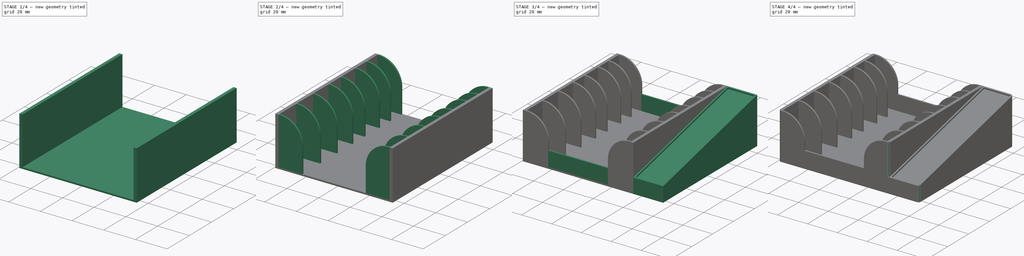
[diagram: build sequence overview — one tinted view per stage of 4, left to right]
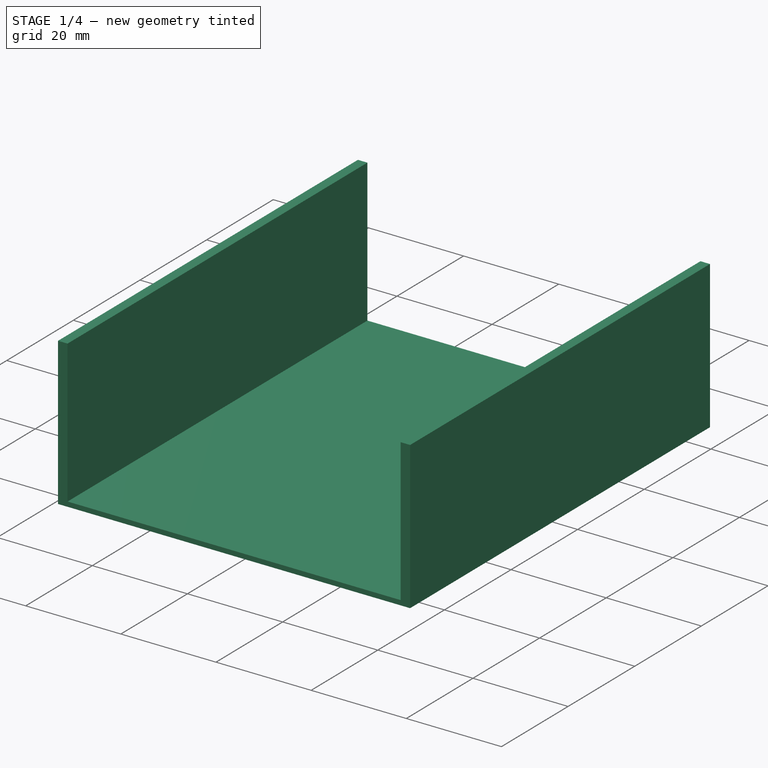
[diagram: stage 1 of 4 — iso view after this stage's code; geometry added in this stage tinted green]
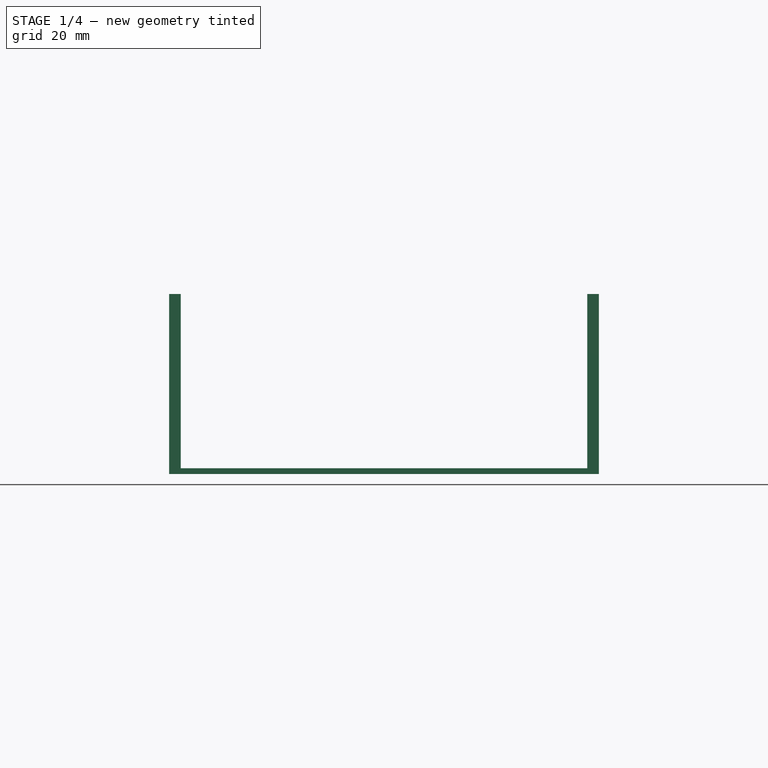
[diagram: stage 1 of 4 — front view after this stage's code; geometry added in this stage tinted green]
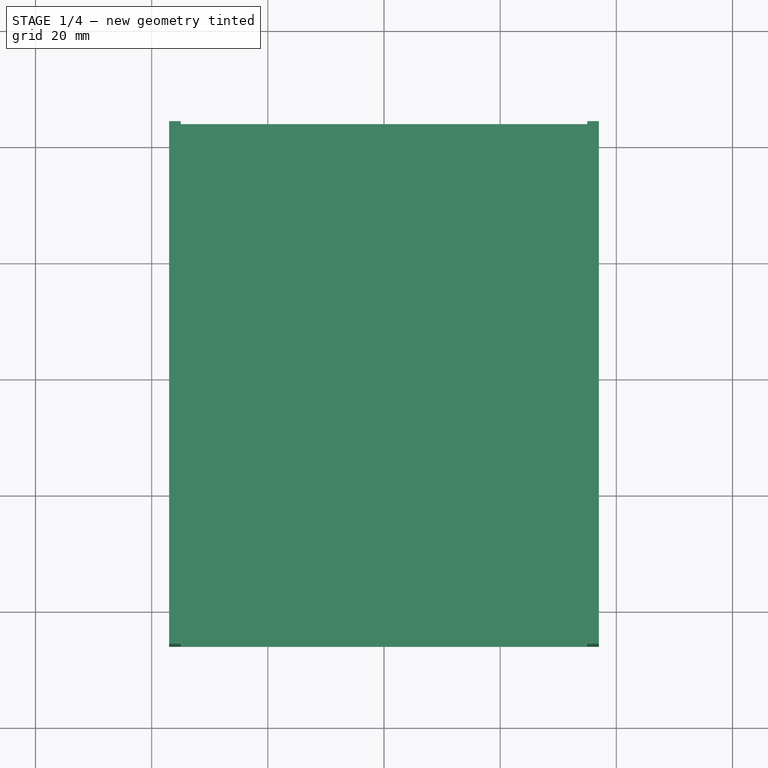
[diagram: stage 1 of 4 — top view after this stage's code; geometry added in this stage tinted green]
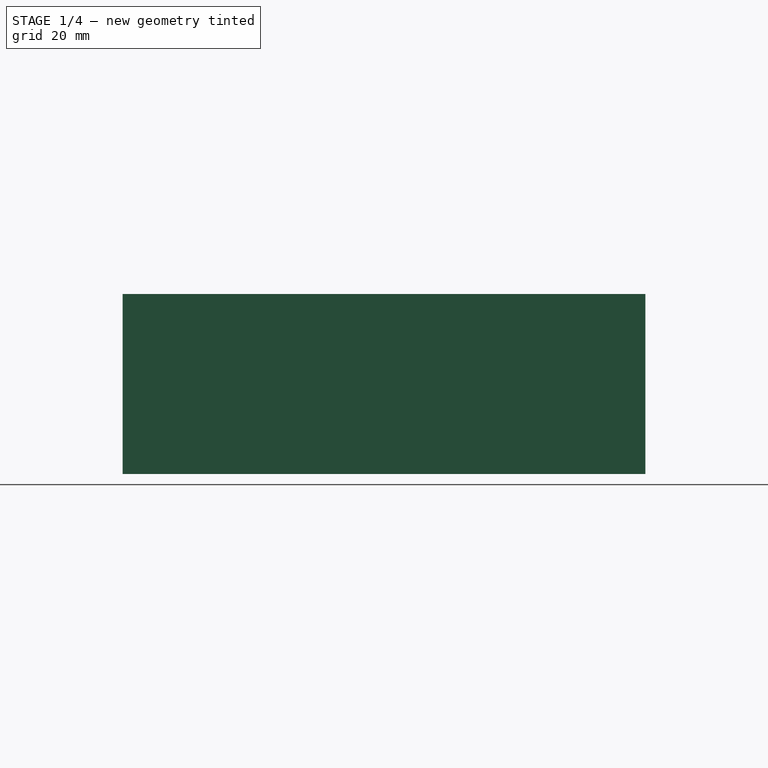
[diagram: stage 1 of 4 — right view after this stage's code; geometry added in this stage tinted green]
FCSTD DOCUMENT  (FreeCAD 0.19R24267 +148 (Git))
Label: base_card_holder_V4
License: All rights reserved
LicenseURL: http://en.wikipedia.org/wiki/All_rights_reserved
objects: Sketcher::SketchObject×8, PartDesign::Pad×5, PartDesign::Fillet×2, PartDesign::Pocket×2, PartDesign::Body×1, App::Part×1
note: 27 computed .brp shape members not serialized (recipe doc carries the construction recipe); baked Part::Feature solids carry a one-line shape summary decoded from their .brp

FEATURE [Sketcher::SketchObject] Sketch
  FullyConstrained = true
  MapMode = 5
  Support = -> [XY_Plane001]
  sketch-geometry (19):
    g0: LineSegment StartX=37 StartY=43 StartZ=0 EndX=37 EndY=34 EndZ=0
    g1: LineSegment StartX=37 StartY=34 StartZ=0 EndX=37 EndY=33 EndZ=0
    g2: LineSegment StartX=37 StartY=33 StartZ=0 EndX=37 EndY=24 EndZ=0
    g3: LineSegment StartX=37 StartY=24 StartZ=0 EndX=37 EndY=23 EndZ=0
    g4: LineSegment StartX=37 StartY=23 StartZ=0 EndX=37 EndY=11 EndZ=0
    g5: LineSegment StartX=37 StartY=11 StartZ=0 EndX=37 EndY=10 EndZ=0
    g6: LineSegment StartX=37 StartY=10 StartZ=0 EndX=37 EndY=0 EndZ=0
    g7: LineSegment StartX=37 StartY=0 StartZ=0 EndX=37 EndY=-1 EndZ=0
    g8: LineSegment StartX=37 StartY=-1 StartZ=0 EndX=37 EndY=-14 EndZ=0
    g9: LineSegment StartX=37 StartY=-14 StartZ=0 EndX=37 EndY=-15 EndZ=0
    g10: LineSegment StartX=37 StartY=-15 StartZ=0 EndX=37 EndY=-29 EndZ=0
    g11: LineSegment StartX=37 StartY=-29 StartZ=0 EndX=37 EndY=-30 EndZ=0
    g12: LineSegment StartX=37 StartY=-30 StartZ=0 EndX=37 EndY=-45 EndZ=0
    g13: LineSegment StartX=37 StartY=43 StartZ=0 EndX=37 EndY=44 EndZ=0
    g14: LineSegment StartX=37 StartY=44 StartZ=0 EndX=0 EndY=44 EndZ=0
    g15: LineSegment StartX=0 StartY=44 StartZ=0 EndX=-37 EndY=44 EndZ=0
    g16: LineSegment StartX=-37 StartY=44 StartZ=0 EndX=-37 EndY=-46 EndZ=0
    g17: LineSegment StartX=-37 StartY=-46 StartZ=0 EndX=37 EndY=-46 EndZ=0
    g18: LineSegment StartX=37 StartY=-46 StartZ=0 EndX=37 EndY=-45 EndZ=0
  constraints (57):
    c: Vertical(g0)
    c: Coincident(g0,g1)
    c: Coincident(g1,g2)
    c: Vertical(g2)
    c: Coincident(g2,g3)
    c: Coincident(g3,g4)
    c: Vertical(g4)
    c: Coincident(g4,g5)
    c: Vertical(g5)
    c: Vertical(g1)
    c: Vertical(g3)
    c: DistanceY(g0,g0) = 9
    c: Equal(g2,g0)
    c: DistanceY(g4,g3) = 12
    c: DistanceY(g1,g0) = 1
    c: Equal(g3,g1)
    c: Equal(g3,g5)
    c: Coincident(g6,g5)
    c: PointOnObject(g6,g-1)
    c: Vertical(g6)
    c: DistanceY(g6,g5) = 10
    c: Coincident(g7,g6)
    c: Vertical(g7)
    c: Equal(g7,g5)
    c: Coincident(g8,g7)
    c: Vertical(g8)
    c: DistanceY(g8,g7) = 13
    c: Coincident(g8,g9)
    c: Coincident(g9,g10)
    c: Vertical(g10)
    c: Vertical(g9)
    c: Equal(g9,g7)
    c: DistanceY(g10,g9) = 14
    c: Coincident(g10,g11)
    c: Vertical(g11)
    c: Coincident(g11,g12)
    c: Vertical(g12)
    c: Equal(g11,g9)
    c: DistanceY(g12,g11) = 15
    c: Coincident(g0,g13)
    c: Vertical(g13)
    c: Coincident(g13,g14)
    c: Horizontal(g14)
    c: Coincident(g14,g15)
    c: Horizontal(g15)
    c: Coincident(g15,g16)
    c: Vertical(g16)
    c: Coincident(g16,g17)
    c: Horizontal(g17)
    c: Coincident(g17,g18)
    c: Coincident(g18,g12)
    c: Vertical(g18)
    c: Equal(g13,g1)
    c: Equal(g1,g18)
    c: Vertical(g14,g-1)
    c: Equal(g15,g14)
    c: DistanceX(g15,g13) = 74
FEATURE [PartDesign::Pad] Pad
  Direction = (1,1,1)
  Length = 1
  Length2 = 100
  Profile = -> Sketch
  Type = 0
FEATURE [Sketcher::SketchObject] Sketch001
  ExternalGeometry = -> [Pad]
  FullyConstrained = true
  MapMode = 5
  Placement = pos=(0,0,1) rot=(0,0,1;0rad)
  Support = -> [Pad]
  sketch-geometry (9):
    g0: LineSegment StartX=35 StartY=44 StartZ=0 EndX=37 EndY=44 EndZ=0
    g1: LineSegment StartX=37 StartY=44 StartZ=0 EndX=37 EndY=0 EndZ=0
    g2: LineSegment StartX=35 StartY=-46 StartZ=0 EndX=35 EndY=44 EndZ=0
    g3: LineSegment StartX=-37 StartY=44 StartZ=0 EndX=-35 EndY=44 EndZ=0
    g4: LineSegment StartX=-35 StartY=44 StartZ=0 EndX=-35 EndY=-46 EndZ=0
    g5: LineSegment StartX=-35 StartY=-46 StartZ=0 EndX=-37 EndY=-46 EndZ=0
    g6: LineSegment StartX=-37 StartY=-46 StartZ=0 EndX=-37 EndY=44 EndZ=0
    g7: LineSegment StartX=37 StartY=0 StartZ=0 EndX=37 EndY=-46 EndZ=0
    g8: LineSegment StartX=37 StartY=-46 StartZ=0 EndX=35 EndY=-46 EndZ=0
  constraints (24):
    c: Coincident(g0,g1)
    c: Coincident(g2,g0)
    c: Horizontal(g0)
    c: Vertical(g1)
    c: Vertical(g2)
    c: PointOnObject(g1,g-1)
    c: Coincident(g3,g4)
    c: Coincident(g4,g5)
    c: Coincident(g5,g6)
    c: Coincident(g6,g3)
    c: Horizontal(g3)
    c: Horizontal(g5)
    c: Vertical(g4)
    c: Vertical(g6)
    c: Coincident(g3,g-5)
    c: Coincident(g0,g-3)
    c: DistanceX(g0,g0) = 2
    c: Equal(g0,g3)
    c: Horizontal(g2,g4)
    c: Horizontal(g4,g-8)
    c: Coincident(g1,g7)
    c: Coincident(g7,g-8)
    c: Coincident(g7,g8)
    c: Coincident(g8,g2)
FEATURE [PartDesign::Pad] Pad001
  BaseFeature = -> Pad
  Direction = (1,1,1)
  Length = 30
  Length2 = 100
  Profile = -> Sketch001
  Type = 0
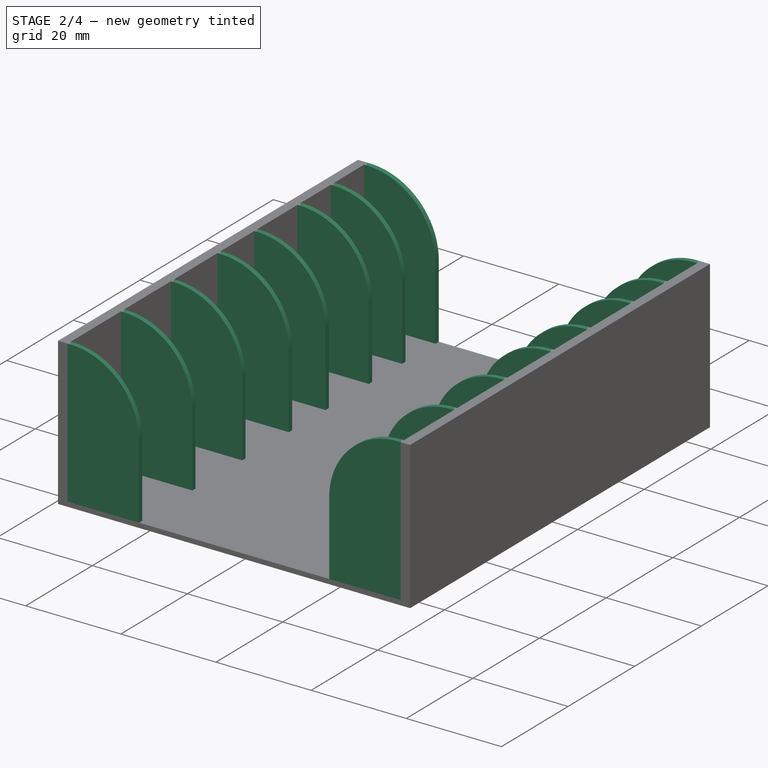
[diagram: stage 2 of 4 — iso view after this stage's code; geometry added in this stage tinted green]
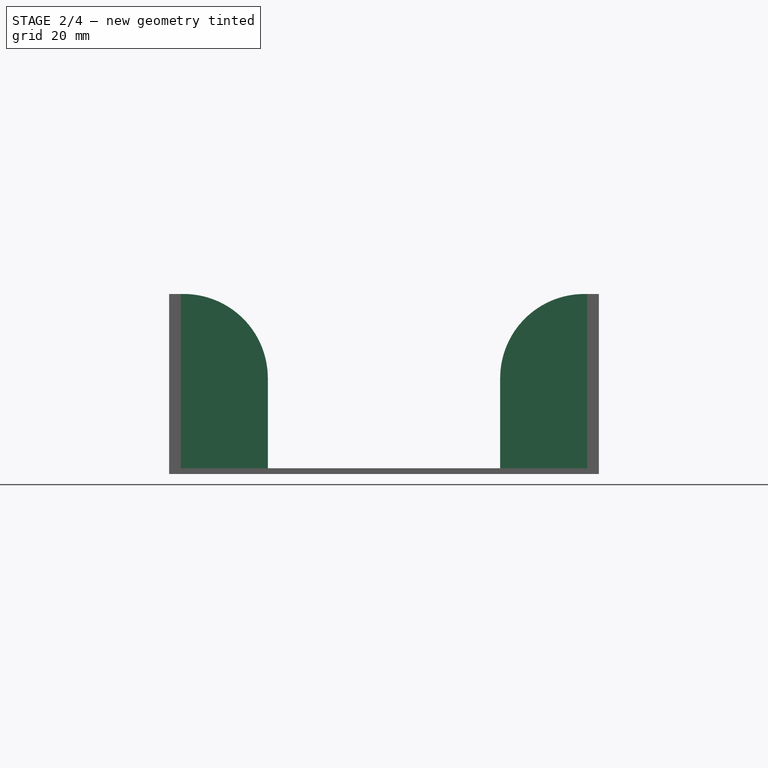
[diagram: stage 2 of 4 — front view after this stage's code; geometry added in this stage tinted green]
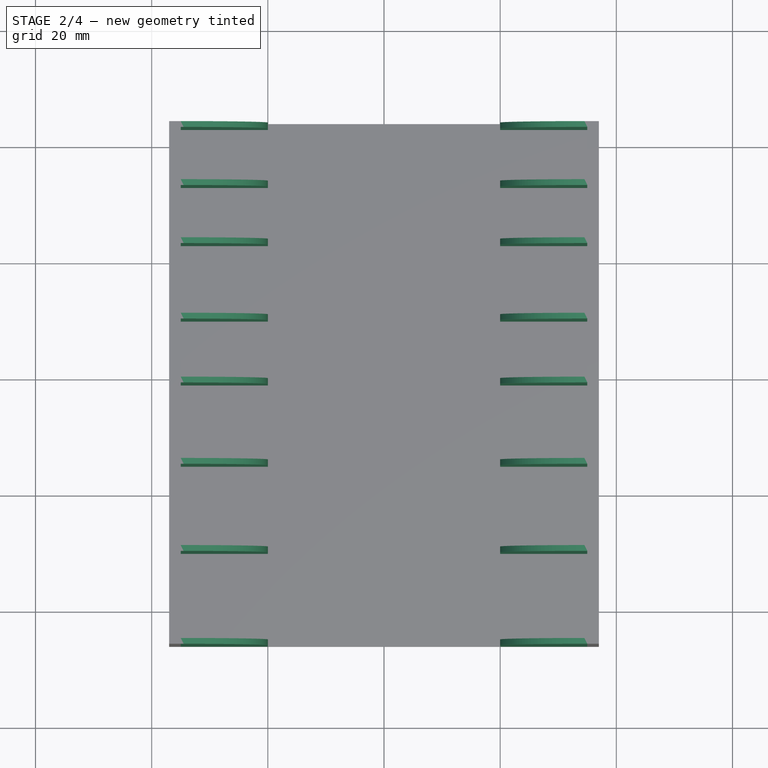
[diagram: stage 2 of 4 — top view after this stage's code; geometry added in this stage tinted green]
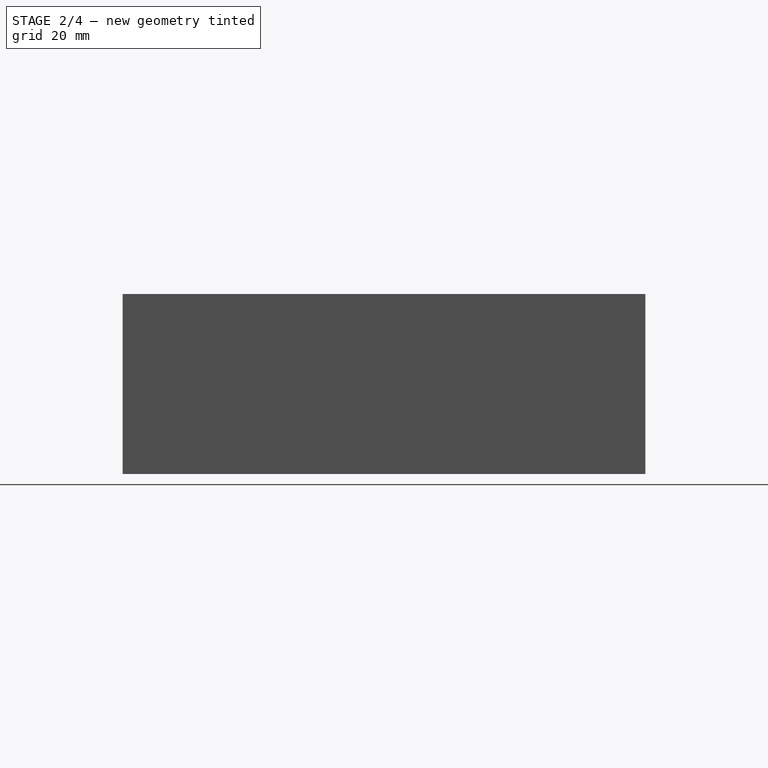
[diagram: stage 2 of 4 — right view after this stage's code; geometry added in this stage tinted green]
FEATURE [Sketcher::SketchObject] Sketch002
  ExternalGeometry = -> [Pad001]
  FullyConstrained = true
  MapMode = 5
  Placement = pos=(0,0,1) rot=(0,0,1;0rad)
  Support = -> [Pad001]
  sketch-geometry (64):
    g0: LineSegment StartX=20 StartY=44 StartZ=0 EndX=37 EndY=44 EndZ=0
    g1: LineSegment StartX=37 StartY=44 StartZ=0 EndX=37 EndY=43 EndZ=0
    g2: LineSegment StartX=37 StartY=43 StartZ=0 EndX=20 EndY=43 EndZ=0
    g3: LineSegment StartX=20 StartY=43 StartZ=0 EndX=20 EndY=44 EndZ=0
    g4: LineSegment StartX=20 StartY=34 StartZ=0 EndX=37 EndY=34 EndZ=0
    g5: LineSegment StartX=37 StartY=34 StartZ=0 EndX=37 EndY=33 EndZ=0
    g6: LineSegment StartX=37 StartY=33 StartZ=0 EndX=20 EndY=33 EndZ=0
    g7: LineSegment StartX=20 StartY=33 StartZ=0 EndX=20 EndY=34 EndZ=0
    g8: LineSegment StartX=20 StartY=23 StartZ=0 EndX=37 EndY=23 EndZ=0
    g9: LineSegment StartX=37 StartY=23 StartZ=0 EndX=37 EndY=24 EndZ=0
    g10: LineSegment StartX=37 StartY=24 StartZ=0 EndX=20 EndY=24 EndZ=0
    g11: LineSegment StartX=20 StartY=24 StartZ=0 EndX=20 EndY=23 EndZ=0
    g12: LineSegment StartX=20 StartY=11 StartZ=0 EndX=37 EndY=11 EndZ=0
    g13: LineSegment StartX=37 StartY=11 StartZ=0 EndX=37 EndY=10 EndZ=0
    g14: LineSegment StartX=37 StartY=10 StartZ=0 EndX=20 EndY=10 EndZ=0
    g15: LineSegment StartX=20 StartY=10 StartZ=0 EndX=20 EndY=11 EndZ=0
    g16: LineSegment StartX=20 StartY=0 StartZ=0 EndX=37 EndY=0 EndZ=0
    g17: LineSegment StartX=37 StartY=0 StartZ=0 EndX=37 EndY=-1 EndZ=0
    g18: LineSegment StartX=37 StartY=-1 StartZ=0 EndX=20 EndY=-1 EndZ=0
    g19: LineSegment StartX=20 StartY=-1 StartZ=0 EndX=20 EndY=0 EndZ=0
    g20: LineSegment StartX=20 StartY=-14 StartZ=0 EndX=37 EndY=-14 EndZ=0
    g21: LineSegment StartX=37 StartY=-14 StartZ=0 EndX=37 EndY=-15 EndZ=0
    g22: LineSegment StartX=37 StartY=-15 StartZ=0 EndX=20 EndY=-15 EndZ=0
    g23: LineSegment StartX=20 StartY=-15 StartZ=0 EndX=20 EndY=-14 EndZ=0
    g24: LineSegment StartX=20 StartY=-29 StartZ=0 EndX=37 EndY=-29 EndZ=0
    g25: LineSegment StartX=37 StartY=-29 StartZ=0 EndX=37 EndY=-30 EndZ=0
    g26: LineSegment StartX=37 StartY=-30 StartZ=0 EndX=20 EndY=-30 EndZ=0
    g27: LineSegment StartX=20 StartY=-30 StartZ=0 EndX=20 EndY=-29 EndZ=0
    g28: LineSegment StartX=37 StartY=-46 StartZ=0 EndX=20 EndY=-46 EndZ=0
    g29: LineSegment StartX=-35 StartY=-45 StartZ=0 EndX=-20 EndY=-45 EndZ=0
    g30: LineSegment StartX=-20 StartY=-45 StartZ=0 EndX=-20 EndY=-46 EndZ=0
    g31: LineSegment StartX=-20 StartY=-46 StartZ=0 EndX=-35 EndY=-46 EndZ=0
    g32: LineSegment StartX=-35 StartY=-46 StartZ=0 EndX=-35 EndY=-45 EndZ=0
    g33: LineSegment StartX=-35 StartY=-29 StartZ=0 EndX=-20 EndY=-29 EndZ=0
    g34: LineSegment StartX=-20 StartY=-29 StartZ=0 EndX=-20 EndY=-30 EndZ=0
    g35: LineSegment StartX=-20 StartY=-30 StartZ=0 EndX=-35 EndY=-30 EndZ=0
    g36: LineSegment StartX=-35 StartY=-30 StartZ=0 EndX=-35 EndY=-29 EndZ=0
    g37: LineSegment StartX=-35 StartY=-14 StartZ=0 EndX=-20 EndY=-14 EndZ=0
    g38: LineSegment StartX=-20 StartY=-14 StartZ=0 EndX=-20 EndY=-15 EndZ=0
    g39: LineSegment StartX=-20 StartY=-15 StartZ=0 EndX=-35 EndY=-15 EndZ=0
    g40: LineSegment StartX=-35 StartY=-15 StartZ=0 EndX=-35 EndY=-14 EndZ=0
    g41: LineSegment StartX=-35 StartY=0 StartZ=0 EndX=-20 EndY=0 EndZ=0
    g42: LineSegment StartX=-20 StartY=0 StartZ=0 EndX=-20 EndY=-1 EndZ=0
    g43: LineSegment StartX=-20 StartY=-1 StartZ=0 EndX=-35 EndY=-1 EndZ=0
    g44: LineSegment StartX=-35 StartY=-1 StartZ=0 EndX=-35 EndY=0 EndZ=0
    g45: LineSegment StartX=-35 StartY=11 StartZ=0 EndX=-20 EndY=11 EndZ=0
    g46: LineSegment StartX=-20 StartY=11 StartZ=0 EndX=-20 EndY=10 EndZ=0
    g47: LineSegment StartX=-20 StartY=10 StartZ=0 EndX=-35 EndY=10 EndZ=0
    g48: LineSegment StartX=-35 StartY=10 StartZ=0 EndX=-35 EndY=11 EndZ=0
    g49: LineSegment StartX=-35 StartY=24 StartZ=0 EndX=-20 EndY=24 EndZ=0
    g50: LineSegment StartX=-20 StartY=24 StartZ=0 EndX=-20 EndY=23 EndZ=0
    g51: LineSegment StartX=-20 StartY=23 StartZ=0 EndX=-35 EndY=23 EndZ=0
    g52: LineSegment StartX=-35 StartY=23 StartZ=0 EndX=-35 EndY=24 EndZ=0
    g53: LineSegment StartX=-35 StartY=34 StartZ=0 EndX=-20 EndY=34 EndZ=0
    g54: LineSegment StartX=-20 StartY=34 StartZ=0 EndX=-20 EndY=33 EndZ=0
    g55: LineSegment StartX=-20 StartY=33 StartZ=0 EndX=-35 EndY=33 EndZ=0
    g56: LineSegment StartX=-35 StartY=33 StartZ=0 EndX=-35 EndY=34 EndZ=0
    g57: LineSegment StartX=-35 StartY=44 StartZ=0 EndX=-20 EndY=44 EndZ=0
    g58: LineSegment StartX=-20 StartY=44 StartZ=0 EndX=-20 EndY=43 EndZ=0
    g59: LineSegment StartX=-20 StartY=43 StartZ=0 EndX=-35 EndY=43 EndZ=0
    g60: LineSegment StartX=-35 StartY=43 StartZ=0 EndX=-35 EndY=44 EndZ=0
    g61: LineSegment StartX=20 StartY=-46 StartZ=0 EndX=20 EndY=-45 EndZ=0
    g62: LineSegment StartX=20 StartY=-45 StartZ=0 EndX=37 EndY=-45 EndZ=0
    g63: LineSegment StartX=37 StartY=-45 StartZ=0 EndX=37 EndY=-46 EndZ=0
  constraints (183):
    c: Coincident(g0,g1)
    c: Coincident(g1,g2)
    c: Coincident(g2,g3)
    c: Coincident(g3,g0)
    c: Horizontal(g0)
    c: Horizontal(g2)
    c: Vertical(g1)
    c: Vertical(g3)
    c: Coincident(g4,g5)
    c: Coincident(g5,g6)
    c: Coincident(g6,g7)
    c: Coincident(g7,g4)
    c: Horizontal(g4)
    c: Horizontal(g6)
    c: Vertical(g5)
    c: Vertical(g7)
    c: Coincident(g8,g9)
    c: Coincident(g9,g10)
    c: Coincident(g10,g11)
    c: Coincident(g11,g8)
    c: Horizontal(g8)
    c: Horizontal(g10)
    c: Vertical(g9)
    c: Vertical(g11)
    c: Coincident(g12,g13)
    c: Coincident(g13,g14)
    c: Coincident(g14,g15)
    c: Coincident(g15,g12)
    c: Horizontal(g12)
    c: Horizontal(g14)
    c: Vertical(g13)
    c: Vertical(g15)
    c: Coincident(g16,g17)
    c: Coincident(g17,g18)
    c: Coincident(g18,g19)
    c: Coincident(g19,g16)
    c: Horizontal(g16)
    c: Horizontal(g18)
    c: Vertical(g17)
    c: Vertical(g19)
    c: Coincident(g20,g21)
    c: Coincident(g21,g22)
    c: Coincident(g22,g23)
    c: Coincident(g23,g20)
    c: Horizontal(g20)
    c: Horizontal(g22)
    c: Vertical(g21)
    c: Vertical(g23)
    c: Coincident(g24,g25)
    c: Coincident(g25,g26)
    c: Coincident(g26,g27)
    c: Coincident(g27,g24)
    c: Horizontal(g24)
    c: Horizontal(g26)
    c: Vertical(g25)
    c: Vertical(g27)
    c: Horizontal(g28)
    c: Coincident(g29,g30)
    c: Coincident(g30,g31)
    c: Coincident(g31,g32)
    c: Coincident(g32,g29)
    c: Horizontal(g29)
    c: Horizontal(g31)
    c: Vertical(g30)
    c: Vertical(g32)
    c: Coincident(g33,g34)
    c: Coincident(g34,g35)
    c: Coincident(g35,g36)
    c: Coincident(g36,g33)
    c: Horizontal(g33)
    c: Horizontal(g35)
    c: Vertical(g34)
    c: Vertical(g36)
    c: Coincident(g37,g38)
    c: Coincident(g38,g39)
    c: Coincident(g39,g40)
    c: Coincident(g40,g37)
    c: Horizontal(g37)
    c: Horizontal(g39)
    c: Vertical(g38)
    c: Vertical(g40)
    c: Coincident(g41,g42)
    c: Coincident(g42,g43)
    c: Coincident(g43,g44)
    c: Coincident(g44,g41)
    c: Horizontal(g41)
    c: Horizontal(g43)
    c: Vertical(g42)
    c: Vertical(g44)
    c: Coincident(g45,g46)
    c: Coincident(g46,g47)
    c: Coincident(g47,g48)
    c: Coincident(g48,g45)
    c: Horizontal(g45)
    c: Horizontal(g47)
    c: Vertical(g46)
    c: Vertical(g48)
    c: Coincident(g49,g50)
    c: Coincident(g50,g51)
    c: Coincident(g51,g52)
    c: Coincident(g52,g49)
    c: Horizontal(g49)
    c: Horizontal(g51)
    c: Vertical(g50)
    c: Vertical(g52)
    c: Coincident(g53,g54)
    c: Coincident(g54,g55)
    c: Coincident(g55,g56)
    c: Coincident(g56,g53)
    c: Horizontal(g53)
    c: Horizontal(g55)
    c: Vertical(g54)
    c: Vertical(g56)
    c: Coincident(g57,g58)
    c: Coincident(g58,g59)
    c: Coincident(g59,g60)
    c: Coincident(g60,g57)
    c: Horizontal(g57)
    c: Horizontal(g59)
    c: Vertical(g58)
    c: Vertical(g60)
    c: Equal(g54,g58)
    c: Equal(g58,g50)
    c: Equal(g50,g46)
    c: Equal(g46,g42)
    c: Equal(g42,g38)
    c: Equal(g38,g23)
    c: Equal(g23,g19)
    c: Equal(g19,g15)
    c: Equal(g15,g11)
    c: Equal(g11,g7)
    c: Equal(g7,g3)
    c: Equal(g3,g34)
    c: Equal(g34,g30)
    c: Coincident(g0,g-3)
    c: Horizontal(g1,g-4)
    c: Coincident(g5,g-6)
    c: Coincident(g9,g-8)
    c: Coincident(g12,g-10)
    c: Coincident(g16,g-12)
    c: Coincident(g21,g-13)
    c: Coincident(g25,g-15)
    c: Vertical(g26,g22)
    c: Vertical(g22,g18)
    c: Vertical(g18,g14)
    c: Vertical(g14,g8)
    c: Vertical(g8,g6)
    c: Vertical(g6,g2)
    c: DistanceX(g0,g-19) = 15
    c: Vertical(g57,g53)
    c: Vertical(g53,g49)
    c: Vertical(g49,g-20)
    c: Vertical(g-20,g45)
    c: Vertical(g45,g41)
    c: Vertical(g41,g37)
    c: Vertical(g37,g33)
    c: Vertical(g33,g29)
    c: Horizontal(g30,g28)
    c: Horizontal(g33,g24)
    c: Horizontal(g37,g20)
    c: Horizontal(g41,g16)
    c: Horizontal(g12,g45)
    c: Coincident(g28,g61)
    c: Coincident(g61,g62)
    c: Horizontal(g62)
    c: Coincident(g62,g63)
    c: Coincident(g63,g28)
    c: Coincident(g62,g-17)
    c: Vertical(g61)
    c: Vertical(g61,g26)
    c: Coincident(g28,g-18)
    c: DistanceX(g31,g30) = 15
    c: Vertical(g29,g34)
    c: Vertical(g34,g38)
    c: Vertical(g38,g42)
    c: Vertical(g42,g45)
    c: Vertical(g45,g50)
    c: Vertical(g50,g54)
    c: Vertical(g54,g58)
    c: Horizontal(g57,g-20)
    c: Horizontal(g4,g53)
    c: Horizontal(g49,g10)
    c: Horizontal(g24,g-16)
FEATURE [PartDesign::Pad] Pad002
  BaseFeature = -> Pad001
  Direction = (1,1,1)
  Length = 10
  Length2 = 100
  Profile = -> Sketch002
  Type = 3
  UpToFace = -> Pad001 [Face24]
FEATURE [PartDesign::Fillet] Fillet
  Base = -> Pad002 [Edge241,Edge234,Edge243,Edge251,Edge259,Edge267,Edge226,Edge218,Edge210,Edge202,Edge194,Edge291,Edge282,Edge275,Edge182,Edge186]
  BaseFeature = -> Pad002
  Radius = 14.5
  SupportTransform = false
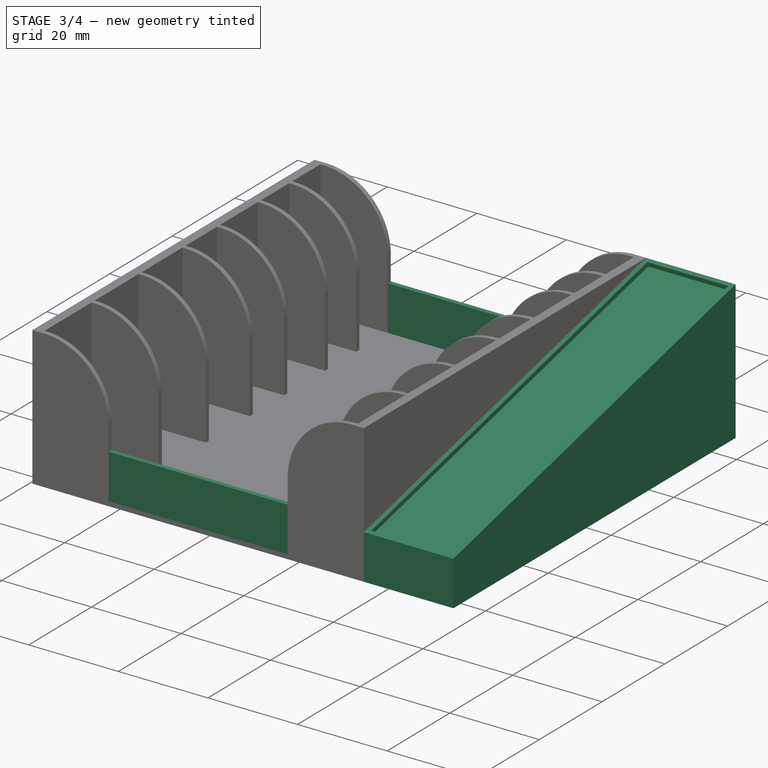
[diagram: stage 3 of 4 — iso view after this stage's code; geometry added in this stage tinted green]
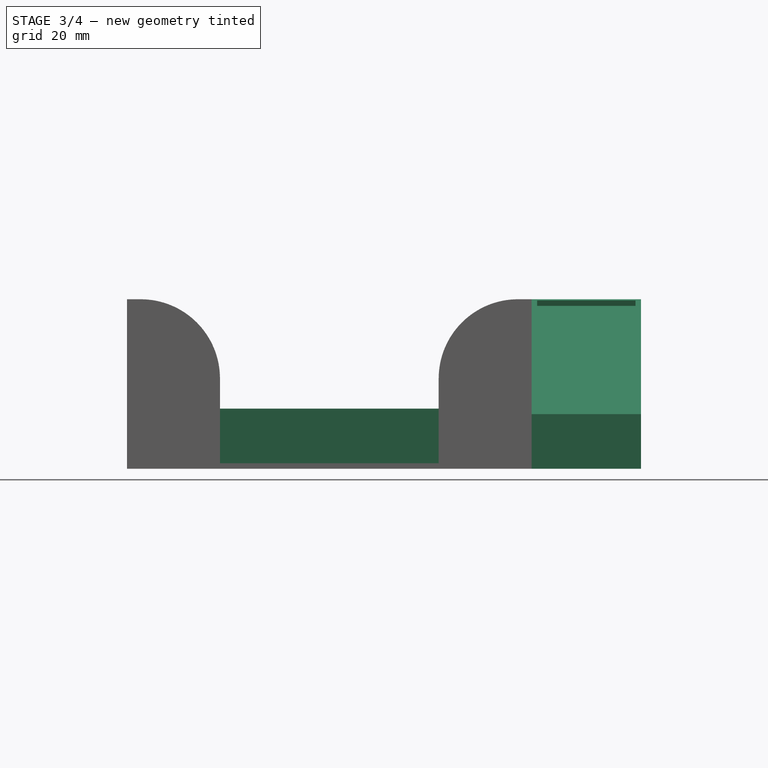
[diagram: stage 3 of 4 — front view after this stage's code; geometry added in this stage tinted green]
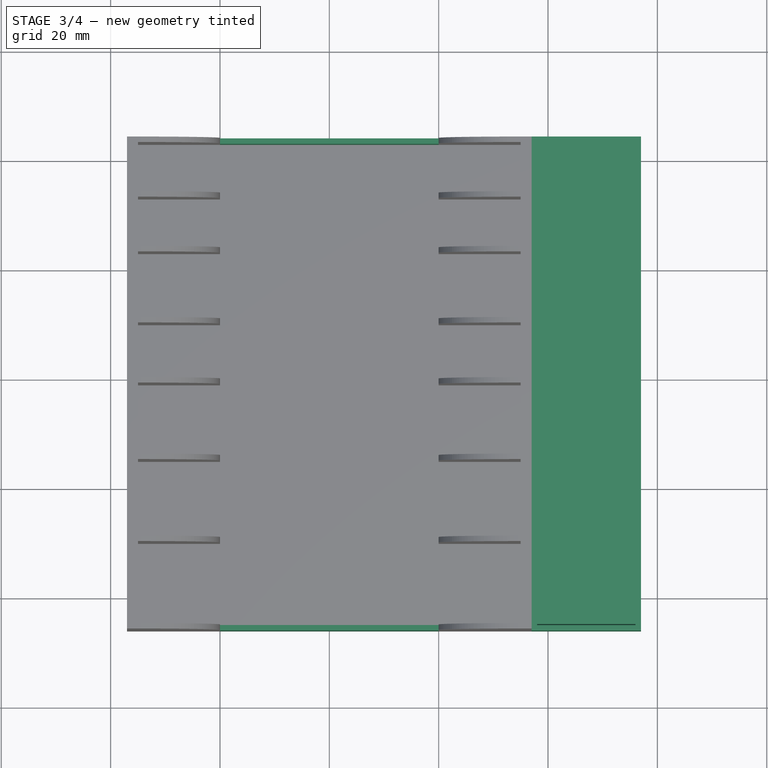
[diagram: stage 3 of 4 — top view after this stage's code; geometry added in this stage tinted green]
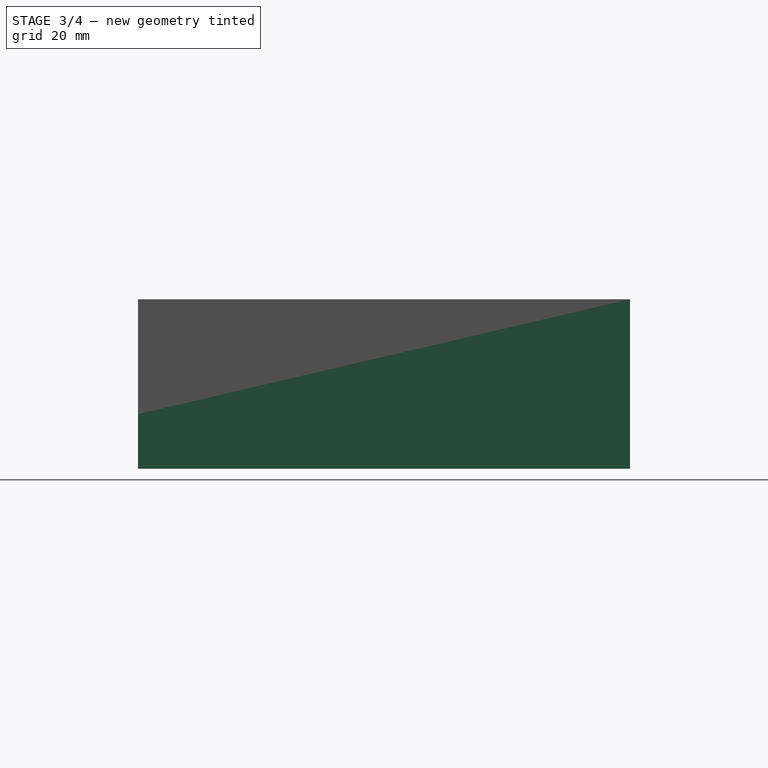
[diagram: stage 3 of 4 — right view after this stage's code; geometry added in this stage tinted green]
FEATURE [Sketcher::SketchObject] Sketch003
  ExternalGeometry = -> [Fillet]
  FullyConstrained = true
  MapMode = 5
  Placement = pos=(0,0,1) rot=(0,0,1;0rad)
  Support = -> [Fillet]
  sketch-geometry (8):
    g0: LineSegment StartX=-20 StartY=44 StartZ=0 EndX=20 EndY=44 EndZ=0
    g1: LineSegment StartX=20 StartY=44 StartZ=0 EndX=20 EndY=43 EndZ=0
    g2: LineSegment StartX=20 StartY=43 StartZ=0 EndX=-20 EndY=43 EndZ=0
    g3: LineSegment StartX=-20 StartY=43 StartZ=0 EndX=-20 EndY=44 EndZ=0
    g4: LineSegment StartX=-20 StartY=-45 StartZ=0 EndX=20 EndY=-45 EndZ=0
    g5: LineSegment StartX=20 StartY=-45 StartZ=0 EndX=20 EndY=-46 EndZ=0
    g6: LineSegment StartX=20 StartY=-46 StartZ=0 EndX=-20 EndY=-46 EndZ=0
    g7: LineSegment StartX=-20 StartY=-46 StartZ=0 EndX=-20 EndY=-45 EndZ=0
  constraints (21):
    c: Coincident(g0,g1)
    c: Coincident(g1,g2)
    c: Coincident(g2,g3)
    c: Coincident(g3,g0)
    c: Horizontal(g0)
    c: Horizontal(g2)
    c: Vertical(g1)
    c: Vertical(g3)
    c: Coincident(g4,g5)
    c: Coincident(g5,g6)
    c: Coincident(g6,g7)
    c: Coincident(g7,g4)
    c: Horizontal(g4)
    c: Horizontal(g6)
    c: Vertical(g5)
    c: Vertical(g7)
    c: Coincident(g5,g-3)
    c: Coincident(g4,g-4)
    c: Equal(g4,g2)
    c: Coincident(g0,g-5)
    c: Equal(g1,g5)
FEATURE [PartDesign::Pad] Pad003
  BaseFeature = -> Fillet
  Direction = (1,1,1)
  Length = 10
  Length2 = 100
  Profile = -> Sketch003
  Type = 0
FEATURE [Sketcher::SketchObject] Sketch004
  ExternalGeometry = -> [Pad003]
  FullyConstrained = true
  MapMode = 5
  Placement = pos=(37,0,0) rot=(0.57735,0.57735,0.57735;2.0944rad)
  Support = -> [Pad003]
  sketch-geometry (4):
    g0: LineSegment StartX=-46 StartY=10 StartZ=0 EndX=-46 EndY=0 EndZ=0
    g1: LineSegment StartX=-46 StartY=0 StartZ=0 EndX=44 EndY=0 EndZ=0
    g2: LineSegment StartX=44 StartY=0 StartZ=0 EndX=44 EndY=31 EndZ=0
    g3: LineSegment StartX=44 StartY=31 StartZ=0 EndX=-46 EndY=10 EndZ=0
  constraints (10):
    c: Vertical(g0)
    c: Coincident(g0,g1)
    c: Horizontal(g1)
    c: Coincident(g1,g2)
    c: Vertical(g2)
    c: Coincident(g2,g3)
    c: Coincident(g3,g0)
    c: Coincident(g0,g-4)
    c: Coincident(g2,g-5)
    c: DistanceY(g0,g0) = 10
FEATURE [Sketcher::SketchObject] Sketch005
  ExternalGeometry = -> [Pad003]
  FullyConstrained = true
  MapMode = 5
  Placement = pos=(37,0,0) rot=(0.57735,0.57735,0.57735;2.0944rad)
  Support = -> [Pad003]
  sketch-geometry (4):
    g0: LineSegment StartX=-46 StartY=10 StartZ=0 EndX=-46 EndY=0 EndZ=0
    g1: LineSegment StartX=-46 StartY=0 StartZ=0 EndX=44 EndY=0 EndZ=0
    g2: LineSegment StartX=44 StartY=0 StartZ=0 EndX=44 EndY=31 EndZ=0
    g3: LineSegment StartX=44 StartY=31 StartZ=0 EndX=-46 EndY=10 EndZ=0
  constraints (10):
    c: Vertical(g0)
    c: Coincident(g0,g1)
    c: Horizontal(g1)
    c: Coincident(g1,g2)
    c: Vertical(g2)
    c: Coincident(g2,g3)
    c: Coincident(g3,g0)
    c: Coincident(g2,g-4)
    c: Coincident(g0,g-3)
    c: DistanceY(g0,g0) = 10
FEATURE [PartDesign::Pad] Pad004
  BaseFeature = -> Pad003
  Direction = (1,1,1)
  Length = 20
  Length2 = 100
  Profile = -> Sketch005
  Type = 0
FEATURE [Sketcher::SketchObject] Sketch006
  ExternalGeometry = -> [Pad004]
  FullyConstrained = true
  MapMode = 5
  Placement = pos=(0,-4.58799,19.6628) rot=(1,0,0;0.229232rad)
  Support = -> [Pad004]
  sketch-geometry (4):
    g0: LineSegment StartX=56 StartY=-41.5244 StartZ=0 EndX=38 EndY=-41.5244 EndZ=0
    g1: LineSegment StartX=38 StartY=-41.5244 StartZ=0 EndX=38 EndY=48.8931 EndZ=0
    g2: LineSegment StartX=38 StartY=48.8931 StartZ=0 EndX=56 EndY=48.8931 EndZ=0
    g3: LineSegment StartX=56 StartY=48.8931 StartZ=0 EndX=56 EndY=-41.5244 EndZ=0
  constraints (12):
    c: Coincident(g0,g1)
    c: Coincident(g1,g2)
    c: Coincident(g2,g3)
    c: Coincident(g3,g0)
    c: Horizontal(g0)
    c: Horizontal(g2)
    c: Vertical(g1)
    c: Vertical(g3)
    c: DistanceX(g-3,g1) = 1
    c: DistanceX(g2,g-3) = 1
    c: DistanceY(g2,g-3) = 1
    c: DistanceY(g-4,g0) = 1
FEATURE [PartDesign::Pocket] Pocket
  BaseFeature = -> Pad004
  Length = 1
  Length2 = 100
  Profile = -> Sketch006
  Type = 0
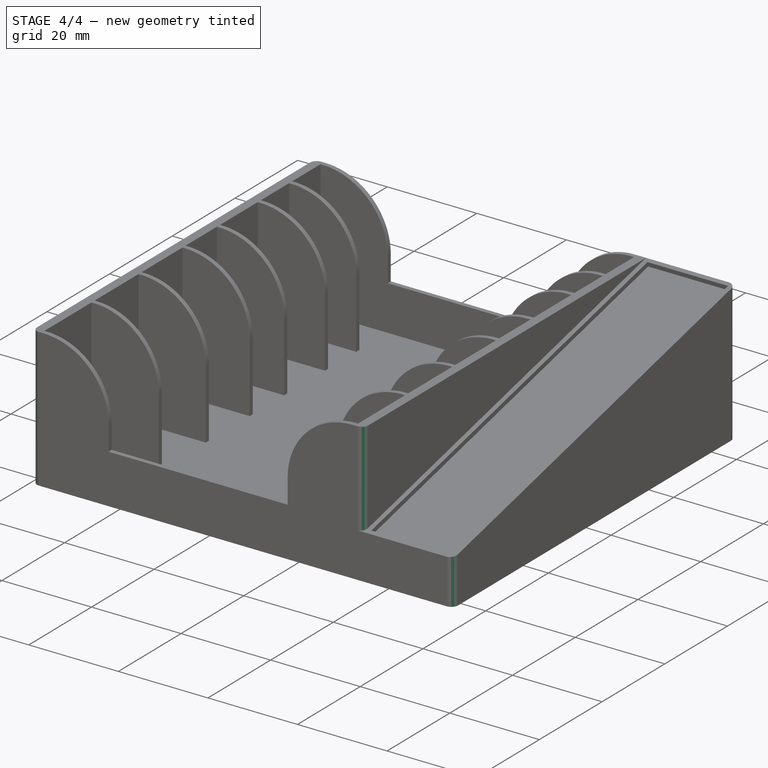
[diagram: stage 4 of 4 — iso view after this stage's code; geometry added in this stage tinted green]
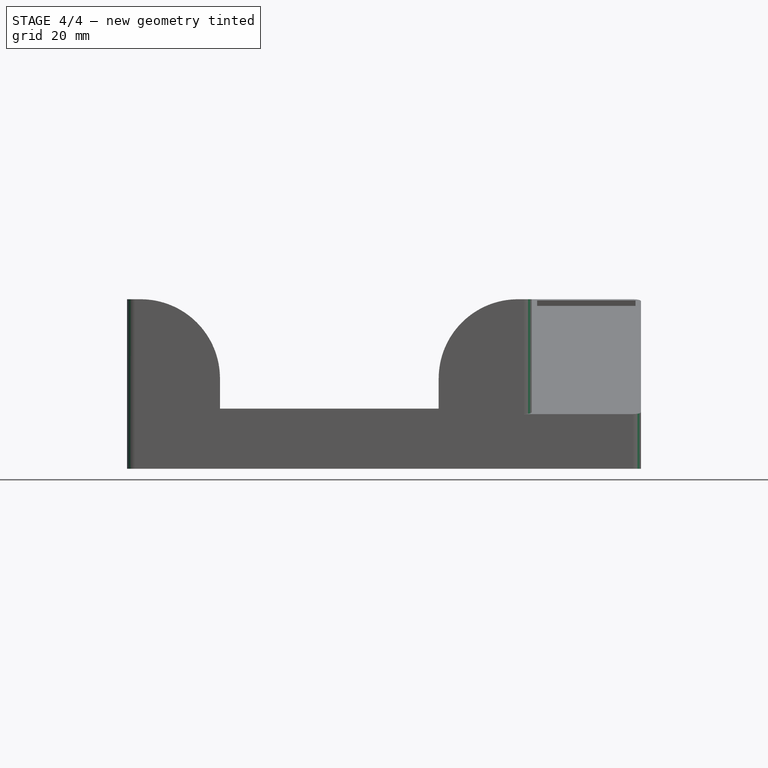
[diagram: stage 4 of 4 — front view after this stage's code; geometry added in this stage tinted green]
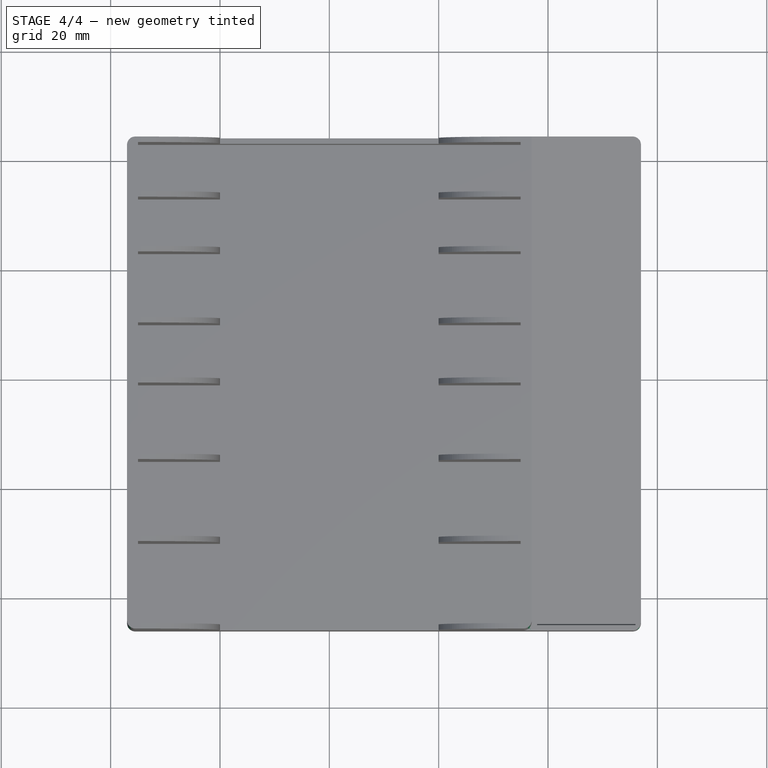
[diagram: stage 4 of 4 — top view after this stage's code; geometry added in this stage tinted green]
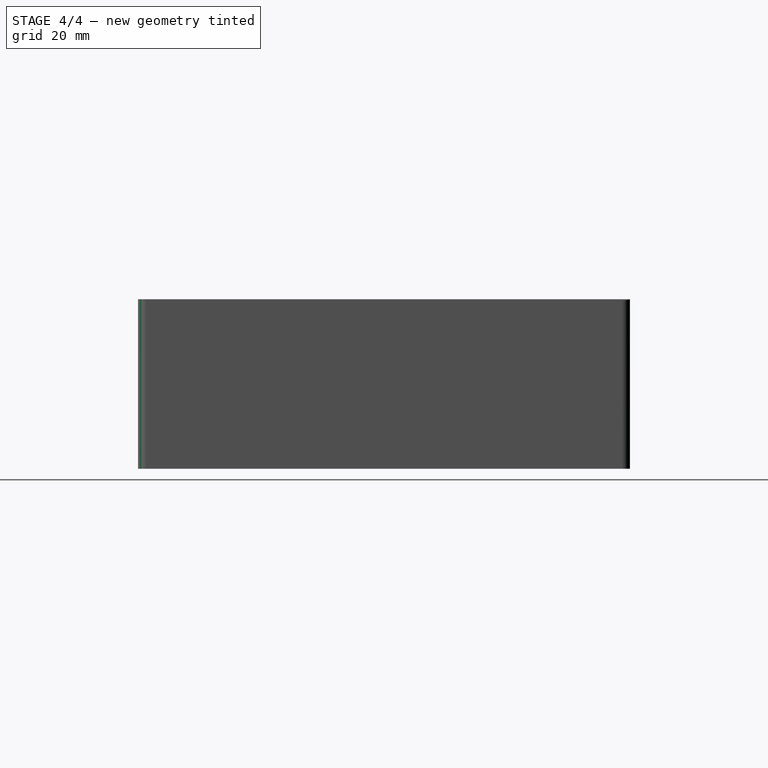
[diagram: stage 4 of 4 — right view after this stage's code; geometry added in this stage tinted green]
FEATURE [PartDesign::Fillet] Fillet001
  Base = -> Pocket [Edge37,Edge150,Edge339,Edge152,Edge143,Edge31]
  BaseFeature = -> Pocket
  Radius = 1.5
  SupportTransform = false
FEATURE [Sketcher::SketchObject] Sketch007
  ExternalGeometry = -> [Fillet001]
  FullyConstrained = true
  MapMode = 5
  Placement = pos=(0,0,31) rot=(0,0,1;0rad)
  Support = -> [Fillet001]
  sketch-geometry (5):
    g0: ArcOfCircle CenterX=35.5 CenterY=-44.5 CenterZ=0 NormalX=0 NormalY=0 NormalZ=1 AngleXU=0 Radius=1.5 StartAngle=4.71239 EndAngle=6.28319
    g1: LineSegment StartX=-35.5 StartY=-44.5 StartZ=0 EndX=-35 EndY=-44.5 EndZ=0
    g2: LineSegment StartX=35.5 StartY=-44.5 StartZ=0 EndX=35 EndY=-44.5 EndZ=0
    g3: LineSegment StartX=37 StartY=-44.5 StartZ=0 EndX=37 EndY=-46 EndZ=0
    g4: LineSegment StartX=37 StartY=-46 StartZ=0 EndX=35.5 EndY=-46 EndZ=0
  constraints (16):
    c: Horizontal(g0,g-3)
    c: Equal(g0,g-3)
    c: Vertical(g0,g0)
    c: Horizontal(g0,g0)
    c: Coincident(g1,g-3)
    c: PointOnObject(g1,g-4)
    c: Horizontal(g1)
    c: Coincident(g2,g0)
    c: PointOnObject(g2,g-5)
    c: Horizontal(g2)
    c: Equal(g2,g1)
    c: Coincident(g0,g3)
    c: Coincident(g3,g4)
    c: Coincident(g4,g0)
    c: Horizontal(g4)
    c: Vertical(g3)
FEATURE [PartDesign::Pocket] Pocket001
  BaseFeature = -> Fillet001
  Length = 0
  Length2 = 100
  Profile = -> Sketch007
  Type = 3
  UpToFace = -> Fillet001 [Face5]
FEATURE [PartDesign::Body] Body
  Group = -> [Sketch,Pad,Sketch001,Pad001,Sketch002,Pad002,Fillet,Sketch003,Pad003,Sketch004,Sketch005,Pad004,Sketch006,Pocket,Fillet001,Sketch007,Pocket001]
  Origin = -> Origin001
  Tip = -> Pocket001
FEATURE [App::Part] Part
  Group = -> [Body]
  Origin = -> Origin
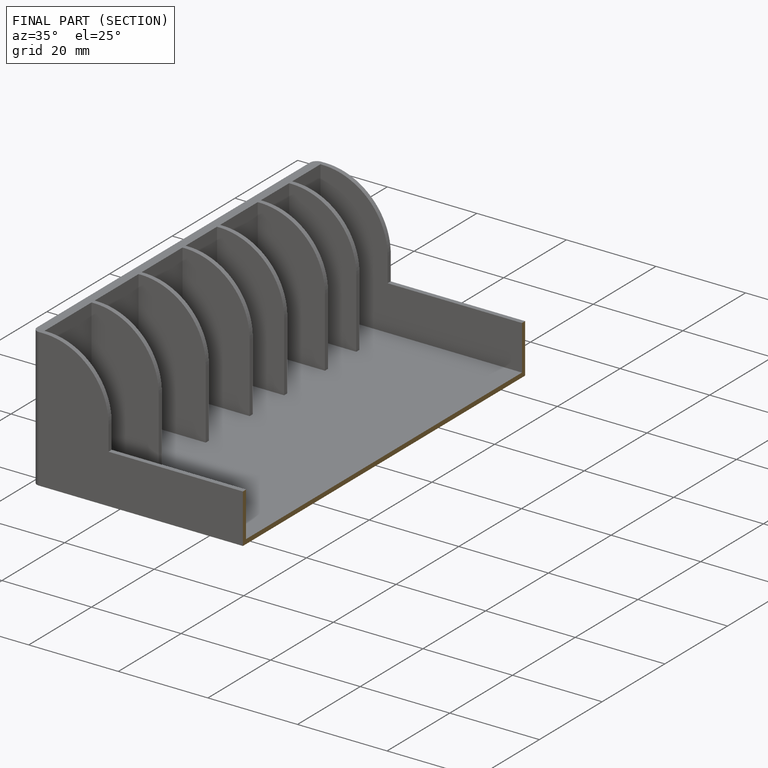
[diagram: finished part — half-section view (interior)]
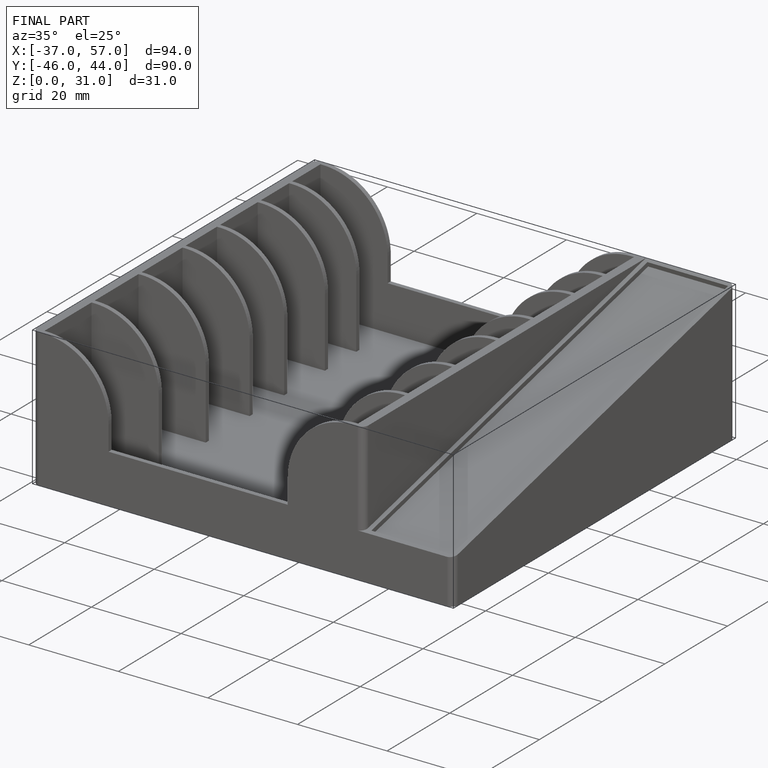
[diagram: finished part — iso view with bounding-box wireframe]
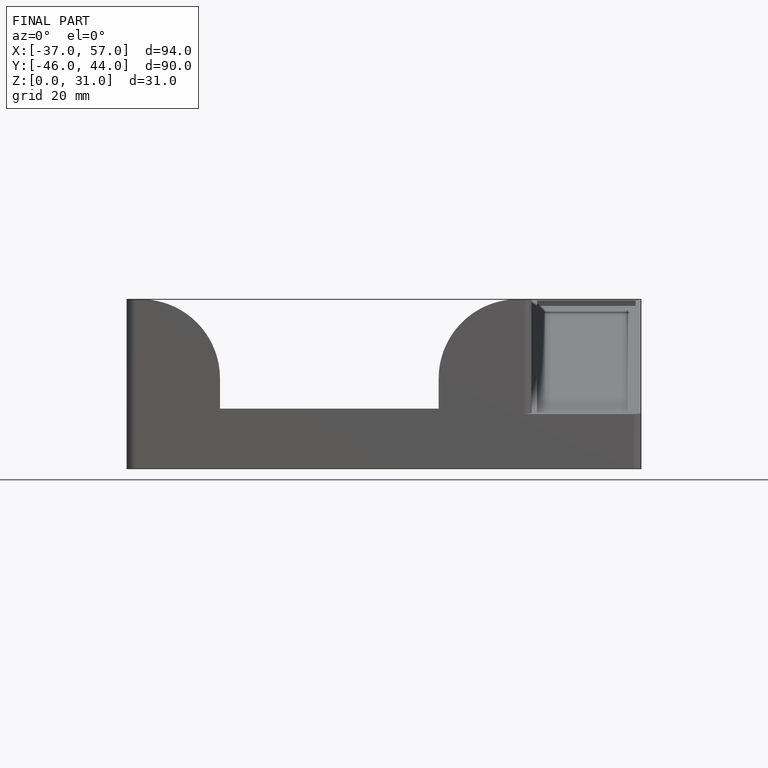
[diagram: finished part — front view with bounding-box wireframe]
